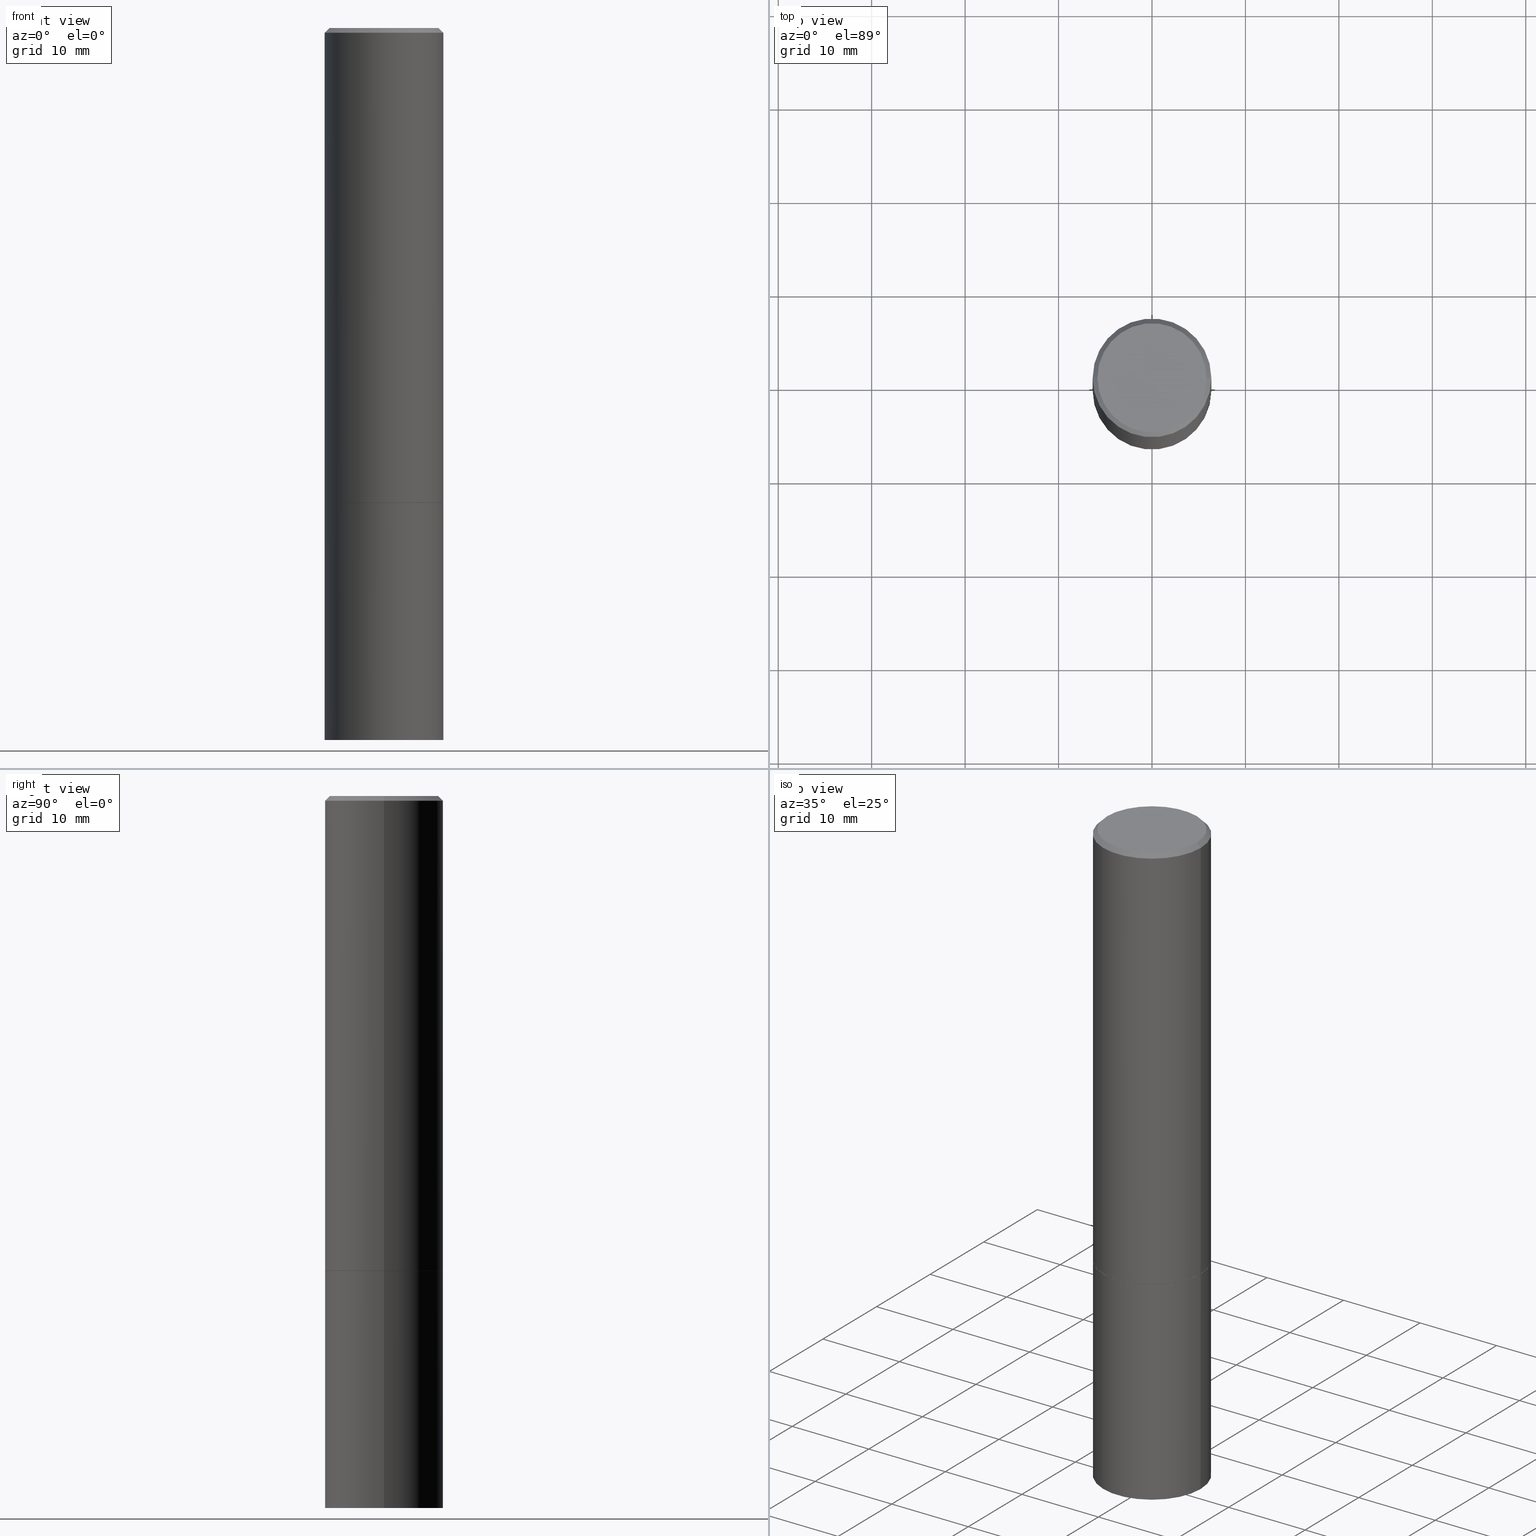
[diagram: canonical four-view strip — front | top / right | iso, engineering-drawing reading convention]
A machine part, canonical four-view strip (front | top / right | iso — engineering-drawing reading convention). The complete STEP part file that produces these views, byte-faithful:
ISO-10303-21;
HEADER;
FILE_DESCRIPTION (( 'STEP AP203' ),
    '1' );
FILE_NAME ('36826.STEP',
    '2024-02-27T19:52:59',
    ( '' ),
    ( '' ),
    'SwSTEP 2.0',
    'SolidWorks 2023',
    '' );
FILE_SCHEMA (( 'CONFIG_CONTROL_DESIGN' ));
ENDSEC;

DATA;
#1 = AXIS2_PLACEMENT_3D ( 'NONE', #194, #136, #308 ) ;
#2 = PLANE ( 'NONE',  #15 ) ;
#3 = EDGE_CURVE ( 'NONE', #271, #324, #366, .T. ) ;
#4 = ORIENTED_EDGE ( 'NONE', *, *, #33, .F. ) ;
#5 = PRODUCT_DEFINITION_FORMATION_WITH_SPECIFIED_SOURCE ( 'ANY', '', #216, .NOT_KNOWN. ) ;
#6 = ORIENTED_EDGE ( 'NONE', *, *, #89, .F. ) ;
#7 = ADVANCED_FACE ( 'NONE', ( #41 ), #230, .T. ) ;
#8 = ORIENTED_EDGE ( 'NONE', *, *, #33, .T. ) ;
#9 = DIRECTION ( 'NONE',  ( 1.000000000000000000, -6.982962677686267499E-15, 0.000000000000000000 ) ) ;
#10 = FACE_OUTER_BOUND ( 'NONE', #357, .T. ) ;
#11 = CARTESIAN_POINT ( 'NONE',  ( 0.2489999999999999991, -8.721720384430172617E-15, -2.000000000000000444 ) ) ;
#12 = ORIENTED_EDGE ( 'NONE', *, *, #119, .T. ) ;
#13 = CARTESIAN_POINT ( 'NONE',  ( 0.000000000000000000, 0.000000000000000000, 0.000000000000000000 ) ) ;
#14 = DIRECTION ( 'NONE',  ( -2.445468806185136597E-29, 3.491481338843145583E-15, 1.000000000000000000 ) ) ;
#15 = AXIS2_PLACEMENT_3D ( 'NONE', #49, #113, #110 ) ;
#16 = ORIENTED_EDGE ( 'NONE', *, *, #341, .T. ) ;
#17 = EDGE_CURVE ( 'NONE', #254, #19, #111, .T. ) ;
#18 = CARTESIAN_POINT ( 'NONE',  ( 4.890937612370273754E-29, -6.982962677686291954E-15, -2.000000000000000444 ) ) ;
#19 = VERTEX_POINT ( 'NONE', #129 ) ;
#20 = CALENDAR_DATE ( 2024, 27, 2 ) ;
#21 = CARTESIAN_POINT ( 'NONE',  ( 4.888492143564088712E-29, -6.979471196347448158E-15, -1.999000000000000110 ) ) ;
#22 = DIRECTION ( 'NONE',  ( 0.000000000000000000, 0.000000000000000000, 1.000000000000000000 ) ) ;
#23 = EDGE_CURVE ( 'NONE', #324, #271, #344, .T. ) ;
#24 = DIRECTION ( 'NONE',  ( -1.000000000000000000, 6.982962677686266711E-15, 0.000000000000000000 ) ) ;
#25 = CIRCLE ( 'NONE', #225, 0.2499999999999999722 ) ;
#26 = APPROVAL_STATUS ( 'not_yet_approved' ) ;
#27 = DIRECTION ( 'NONE',  ( 1.000000000000000000, -6.982962677686265922E-15, 4.876176775795935793E-29 ) ) ;
#28 = CC_DESIGN_PERSON_AND_ORGANIZATION_ASSIGNMENT ( #48, #280, ( #216 ) ) ;
#29 = CALENDAR_DATE ( 2024, 27, 2 ) ;
#30 = CARTESIAN_POINT ( 'NONE',  ( 4.890937612370273754E-29, -6.982962677686291954E-15, -2.000000000000000444 ) ) ;
#31 = DATE_TIME_ROLE ( 'classification_date' ) ;
#32 = AXIS2_PLACEMENT_3D ( 'NONE', #188, #102, #153 ) ;
#33 = EDGE_CURVE ( 'NONE', #271, #257, #213, .T. ) ;
#34 = LOCAL_TIME ( 14, 52, 59.00000000000000000, #187 ) ;
#35 = ORIENTED_EDGE ( 'NONE', *, *, #114, .T. ) ;
#36 = ADVANCED_FACE ( 'NONE', ( #10 ), #236, .T. ) ;
#37 = FACE_OUTER_BOUND ( 'NONE', #149, .T. ) ;
#38 = DIRECTION ( 'NONE',  ( 1.000000000000000000, -6.982962677686266711E-15, 4.876176775795935793E-29 ) ) ;
#39 = AXIS2_PLACEMENT_3D ( 'NONE', #196, #138, #143 ) ;
#40 = SECURITY_CLASSIFICATION ( '', '', #219 ) ;
#41 = FACE_OUTER_BOUND ( 'NONE', #61, .T. ) ;
#42 = CARTESIAN_POINT ( 'NONE',  ( 0.000000000000000000, 0.000000000000000000, 0.000000000000000000 ) ) ;
#43 = EDGE_LOOP ( 'NONE', ( #295, #8, #238, #354 ) ) ;
#44 = CARTESIAN_POINT ( 'NONE',  ( 7.336406418555409790E-29, -1.047444401652943635E-14, -3.000000000000000444 ) ) ;
#45 = AXIS2_PLACEMENT_3D ( 'NONE', #268, #14, #185 ) ;
#46 = CONICAL_SURFACE ( 'NONE', #283, 0.2489999999999999991, 0.7853981633973970977 ) ;
#47 = DIRECTION ( 'NONE',  ( 1.000000000000000000, -6.982962677686262766E-15, 0.000000000000000000 ) ) ;
#48 = PERSON_AND_ORGANIZATION ( #224, #309 ) ;
#49 = CARTESIAN_POINT ( 'NONE',  ( 1.606081415867840278E-15, 0.2299999999999998712, -8.201147578943247056E-16 ) ) ;
#50 = DATE_AND_TIME ( #77, #34 ) ;
#51 = CARTESIAN_POINT ( 'NONE',  ( 4.890937612370273754E-29, -6.982962677686291954E-15, -2.000000000000000444 ) ) ;
#52 = PERSON_AND_ORGANIZATION ( #224, #309 ) ;
#53 = AXIS2_PLACEMENT_3D ( 'NONE', #42, #64, #38 ) ;
#54 = DATE_AND_TIME ( #29, #165 ) ;
#55 = EDGE_CURVE ( 'NONE', #299, #156, #171, .T. ) ;
#56 = PERSON_AND_ORGANIZATION ( #224, #309 ) ;
#57 = DIRECTION ( 'NONE',  ( 1.000000000000000000, -6.982962677686267499E-15, 0.000000000000000000 ) ) ;
#58 = MANIFOLD_SOLID_BREP ( 'Body-Move/Copy2[1]', #116 ) ;
#59 = APPROVAL ( #26, 'UNSPECIFIED' ) ;
#60 = AXIS2_PLACEMENT_3D ( 'NONE', #30, #79, #166 ) ;
#61 = EDGE_LOOP ( 'NONE', ( #134, #93, #259, #318 ) ) ;
#62 = LINE ( 'NONE', #273, #288 ) ;
#63 = CC_DESIGN_PERSON_AND_ORGANIZATION_ASSIGNMENT ( #362, #330, ( #69 ) ) ;
#64 = DIRECTION ( 'NONE',  ( -2.445468806185136597E-29, 3.491481338843145583E-15, 1.000000000000000000 ) ) ;
#65 = ORIENTED_EDGE ( 'NONE', *, *, #106, .F. ) ;
#66 = EDGE_CURVE ( 'NONE', #257, #100, #293, .T. ) ;
#67 = AXIS2_PLACEMENT_3D ( 'NONE', #70, #124, #9 ) ;
#68 = CARTESIAN_POINT ( 'NONE',  ( 0.000000000000000000, 0.000000000000000000, 0.000000000000000000 ) ) ;
#69 = PRODUCT_DEFINITION ( 'UNKNOWN', '', #5, #161 ) ;
#70 = CARTESIAN_POINT ( 'NONE',  ( 4.888492143564088712E-29, -6.979471196347448158E-15, -1.999000000000000110 ) ) ;
#71 = ORIENTED_EDGE ( 'NONE', *, *, #17, .T. ) ;
#72 = ORIENTED_EDGE ( 'NONE', *, *, #226, .T. ) ;
#73 = APPLICATION_PROTOCOL_DEFINITION ( 'international standard', 'config_control_design', 1994, #86 ) ;
#74 = VECTOR ( 'NONE', #262, 39.37007874015748143 ) ;
#75 = CONICAL_SURFACE ( 'NONE', #172, 0.2489999999999999991, 0.7853981633973970977 ) ;
#76 = ORIENTED_EDGE ( 'NONE', *, *, #333, .F. ) ;
#77 = CALENDAR_DATE ( 2024, 27, 2 ) ;
#78 = CARTESIAN_POINT ( 'NONE',  ( 0.2500000000000000000, -8.728703347107858632E-15, -2.000000000000000444 ) ) ;
#79 = DIRECTION ( 'NONE',  ( -2.445468806185136597E-29, 3.491481338843145583E-15, 1.000000000000000000 ) ) ;
#80 = CARTESIAN_POINT ( 'NONE',  ( 0.000000000000000000, 0.000000000000000000, 0.000000000000000000 ) ) ;
#81 = DIMENSIONAL_EXPONENTS ( 1.000000000000000000, 0.000000000000000000, 0.000000000000000000, 0.000000000000000000, 0.000000000000000000, 0.000000000000000000, 0.000000000000000000 ) ;
#82 = AXIS2_PLACEMENT_3D ( 'NONE', #340, #191, #339 ) ;
#83 = COORDINATED_UNIVERSAL_TIME_OFFSET ( 5, 0, .BEHIND. ) ;
#84 = DIRECTION ( 'NONE',  ( 2.445468806185136597E-29, -3.491481338843145583E-15, -1.000000000000000000 ) ) ;
#85 = CARTESIAN_POINT ( 'NONE',  ( -0.2499999999999999722, -1.748293572161903489E-15, -1.999000000000000110 ) ) ;
#86 = APPLICATION_CONTEXT ( 'configuration controlled 3d designs of mechanical parts and assemblies' ) ;
#87 = CC_DESIGN_SECURITY_CLASSIFICATION ( #40, ( #5 ) ) ;
#88 = CARTESIAN_POINT ( 'NONE',  ( 0.2489999999999999991, -8.721720384430172617E-15, -2.000000000000000444 ) ) ;
#89 = EDGE_CURVE ( 'NONE', #19, #254, #272, .T. ) ;
#90 = AXIS2_PLACEMENT_3D ( 'NONE', #68, #274, #351 ) ;
#91 = CIRCLE ( 'NONE', #67, 0.2499999999999999722 ) ;
#92 = DIRECTION ( 'NONE',  ( -2.445468806185136597E-29, 3.491481338843145583E-15, 1.000000000000000000 ) ) ;
#93 = ORIENTED_EDGE ( 'NONE', *, *, #106, .T. ) ;
#94 = VERTEX_POINT ( 'NONE', #331 ) ;
#95 = EDGE_CURVE ( 'NONE', #324, #100, #334, .T. ) ;
#96 = CARTESIAN_POINT ( 'NONE',  ( 0.2500000000000000000, -1.222018468595100303E-14, -3.000000000000000444 ) ) ;
#97 = AXIS2_PLACEMENT_3D ( 'NONE', #51, #358, #27 ) ;
#98 = ORIENTED_EDGE ( 'NONE', *, *, #55, .F. ) ;
#99 =( LENGTH_UNIT ( ) NAMED_UNIT ( * ) SI_UNIT ( $, .METRE. ) );
#100 = VERTEX_POINT ( 'NONE', #78 ) ;
#101 = PERSON_AND_ORGANIZATION ( #224, #309 ) ;
#102 = DIRECTION ( 'NONE',  ( -2.445468806185136597E-29, 3.491481338843145583E-15, 1.000000000000000000 ) ) ;
#103 = AXIS2_PLACEMENT_3D ( 'NONE', #18, #289, #239 ) ;
#104 = PLANE ( 'NONE',  #97 ) ;
#105 = DIRECTION ( 'NONE',  ( -2.445468806185136597E-29, 3.491481338843145583E-15, 1.000000000000000000 ) ) ;
#106 = EDGE_CURVE ( 'NONE', #151, #19, #215, .T. ) ;
#107 = PERSON_AND_ORGANIZATION_ROLE ( 'design_supplier' ) ;
#108 = CARTESIAN_POINT ( 'NONE',  ( 8.350811314681758556E-46, -1.192274536304357760E-31, -3.414809992080329023E-17 ) ) ;
#109 = APPROVAL_ROLE ( '' ) ;
#110 = DIRECTION ( 'NONE',  ( -1.000000000000000000, 6.982962677686265922E-15, -4.876176775795935793E-29 ) ) ;
#111 = CIRCLE ( 'NONE', #45, 0.2499999999999998057 ) ;
#112 = CIRCLE ( 'NONE', #130, 0.2500000000000000000 ) ;
#113 = DIRECTION ( 'NONE',  ( 2.438088387897960049E-29, -3.491481338843145188E-15, -1.000000000000000000 ) ) ;
#114 = EDGE_CURVE ( 'NONE', #156, #299, #300, .T. ) ;
#115 = APPROVAL ( #338, 'UNSPECIFIED' ) ;
#116 = CLOSED_SHELL ( 'NONE', ( #265, #141, #181, #285 ) ) ;
#117 = LOCAL_TIME ( 14, 52, 59.00000000000000000, #212 ) ;
#118 = ADVANCED_FACE ( 'NONE', ( #365 ), #2, .F. ) ;
#119 = EDGE_CURVE ( 'NONE', #100, #257, #112, .T. ) ;
#120 = ORIENTED_EDGE ( 'NONE', *, *, #23, .F. ) ;
#121 = AXIS2_PLACEMENT_3D ( 'NONE', #227, #343, #258 ) ;
#122 = DIRECTION ( 'NONE',  ( 1.000000000000000000, -6.982962677686266711E-15, 4.876176775795935793E-29 ) ) ;
#123 = ORIENTED_EDGE ( 'NONE', *, *, #233, .F. ) ;
#124 = DIRECTION ( 'NONE',  ( -2.445468806185136597E-29, 3.491481338843145583E-15, 1.000000000000000000 ) ) ;
#125 = ADVANCED_BREP_SHAPE_REPRESENTATION ( '36826', ( #58, #178, #263 ), #319 ) ;
#126 = ORIENTED_EDGE ( 'NONE', *, *, #233, .T. ) ;
#127 = UNCERTAINTY_MEASURE_WITH_UNIT (LENGTH_MEASURE( 1.000000000000000082E-05 ), #323, 'distance_accuracy_value', 'NONE');
#128 = FACE_OUTER_BOUND ( 'NONE', #158, .T. ) ;
#129 = CARTESIAN_POINT ( 'NONE',  ( -0.2499999999999998057, 1.675911042644702196E-15, -0.02000000000000004205 ) ) ;
#130 = AXIS2_PLACEMENT_3D ( 'NONE', #162, #304, #218 ) ;
#131 = DIRECTION ( 'NONE',  ( -2.445468806185136597E-29, 3.491481338843145583E-15, 1.000000000000000000 ) ) ;
#132 = AXIS2_PLACEMENT_3D ( 'NONE', #350, #131, #184 ) ;
#133 = ORIENTED_EDGE ( 'NONE', *, *, #246, .T. ) ;
#134 = ORIENTED_EDGE ( 'NONE', *, *, #155, .T. ) ;
#135 = MECHANICAL_CONTEXT ( 'NONE', #169, 'mechanical' ) ;
#136 = DIRECTION ( 'NONE',  ( 2.438088387897960049E-29, -3.491481338843145188E-15, -1.000000000000000000 ) ) ;
#137 = AXIS2_PLACEMENT_3D ( 'NONE', #108, #252, #220 ) ;
#138 = DIRECTION ( 'NONE',  ( -2.445468806185136597E-29, 3.491481338843145583E-15, 1.000000000000000000 ) ) ;
#139 = APPROVAL_DATE_TIME ( #307, #59 ) ;
#140 = CARTESIAN_POINT ( 'NONE',  ( 4.890937612370273754E-29, -6.982962677686291954E-15, -2.000000000000000444 ) ) ;
#141 = ADVANCED_FACE ( 'NONE', ( #222 ), #223, .T. ) ;
#142 = PERSON_AND_ORGANIZATION ( #224, #309 ) ;
#143 = DIRECTION ( 'NONE',  ( 1.000000000000000000, -6.982962677686266711E-15, 0.000000000000000000 ) ) ;
#144 = COORDINATED_UNIVERSAL_TIME_OFFSET ( 5, 0, .BEHIND. ) ;
#145 = CARTESIAN_POINT ( 'NONE',  ( -0.2299999999999998712, 1.640996229256271139E-15, -3.414809992081464243E-17 ) ) ;
#146 = VECTOR ( 'NONE', #356, 39.37007874015748143 ) ;
#147 = ORIENTED_EDGE ( 'NONE', *, *, #66, .F. ) ;
#148 = CIRCLE ( 'NONE', #202, 0.2489999999999999991 ) ;
#149 = EDGE_LOOP ( 'NONE', ( #256, #292, #175, #76 ) ) ;
#150 = CARTESIAN_POINT ( 'NONE',  ( 0.2499999999999998057, -1.784954126219744611E-15, -0.02000000000000004205 ) ) ;
#151 = VERTEX_POINT ( 'NONE', #85 ) ;
#152 = CYLINDRICAL_SURFACE ( 'NONE', #132, 0.2500000000000000000 ) ;
#153 = DIRECTION ( 'NONE',  ( 1.000000000000000000, -6.982962677686262766E-15, 0.000000000000000000 ) ) ;
#154 = CARTESIAN_POINT ( 'NONE',  ( 0.2299999999999998712, -1.681434332853598025E-15, -3.414809992079179628E-17 ) ) ;
#155 = EDGE_CURVE ( 'NONE', #94, #151, #25, .T. ) ;
#156 = VERTEX_POINT ( 'NONE', #145 ) ;
#157 = DIRECTION ( 'NONE',  ( -0.7071067811865460184, 2.468850131082241283E-15, -0.7071067811865490160 ) ) ;
#158 = EDGE_LOOP ( 'NONE', ( #255, #177, #297, #173 ) ) ;
#159 = CARTESIAN_POINT ( 'NONE',  ( -0.2500000000000000000, -6.952346507707613689E-15, -3.000000000000000444 ) ) ;
#160 = EDGE_LOOP ( 'NONE', ( #12, #316 ) ) ;
#161 = DESIGN_CONTEXT ( 'detailed design', #86, 'design' ) ;
#162 = CARTESIAN_POINT ( 'NONE',  ( 4.890937612370273754E-29, -6.982962677686291954E-15, -2.000000000000000444 ) ) ;
#163 = APPROVAL_DATE_TIME ( #241, #209 ) ;
#164 = FACE_OUTER_BOUND ( 'NONE', #322, .T. ) ;
#165 = LOCAL_TIME ( 14, 52, 59.00000000000000000, #144 ) ;
#166 = DIRECTION ( 'NONE',  ( 1.000000000000000000, -6.982962677686266711E-15, 0.000000000000000000 ) ) ;
#167 = DATE_TIME_ROLE ( 'creation_date' ) ;
#168 = COORDINATED_UNIVERSAL_TIME_OFFSET ( 5, 0, .BEHIND. ) ;
#169 = APPLICATION_CONTEXT ( 'configuration controlled 3d designs of mechanical parts and assemblies' ) ;
#170 = DIRECTION ( 'NONE',  ( -2.445468806185136597E-29, 3.491481338843145583E-15, 1.000000000000000000 ) ) ;
#171 = CIRCLE ( 'NONE', #137, 0.2299999999999998712 ) ;
#172 = AXIS2_PLACEMENT_3D ( 'NONE', #345, #203, #237 ) ;
#173 = ORIENTED_EDGE ( 'NONE', *, *, #341, .F. ) ;
#174 = AXIS2_PLACEMENT_3D ( 'NONE', #266, #84, #24 ) ;
#175 = ORIENTED_EDGE ( 'NONE', *, *, #155, .F. ) ;
#176 = FACE_OUTER_BOUND ( 'NONE', #43, .T. ) ;
#177 = ORIENTED_EDGE ( 'NONE', *, *, #332, .T. ) ;
#178 = MANIFOLD_SOLID_BREP ( 'Body-Move/Copy2[2]', #336 ) ;
#179 = DIRECTION ( 'NONE',  ( -2.445468806185136597E-29, 3.491481338843145583E-15, 1.000000000000000000 ) ) ;
#180 = ORIENTED_EDGE ( 'NONE', *, *, #89, .T. ) ;
#181 = ADVANCED_FACE ( 'NONE', ( #279 ), #276, .F. ) ;
#182 = CYLINDRICAL_SURFACE ( 'NONE', #53, 0.2500000000000000000 ) ;
#183 = EDGE_LOOP ( 'NONE', ( #35, #311 ) ) ;
#184 = DIRECTION ( 'NONE',  ( 1.000000000000000000, -6.982962677686266711E-15, 4.876176775795935793E-29 ) ) ;
#185 = DIRECTION ( 'NONE',  ( 1.000000000000000000, -6.982962677686266711E-15, 0.000000000000000000 ) ) ;
#186 = ORIENTED_EDGE ( 'NONE', *, *, #246, .F. ) ;
#187 = COORDINATED_UNIVERSAL_TIME_OFFSET ( 5, 0, .BEHIND. ) ;
#188 = CARTESIAN_POINT ( 'NONE',  ( 7.336406418555409790E-29, -1.047444401652943635E-14, -3.000000000000000444 ) ) ;
#189 = APPLICATION_PROTOCOL_DEFINITION ( 'international standard', 'config_control_design', 1994, #169 ) ;
#190 = CARTESIAN_POINT ( 'NONE',  ( 8.350811314681758556E-46, -1.192274536304357760E-31, -3.414809992080329023E-17 ) ) ;
#191 = DIRECTION ( 'NONE',  ( 2.438088387897960049E-29, -3.491481338843145188E-15, -1.000000000000000000 ) ) ;
#192 = VECTOR ( 'NONE', #242, 39.37007874015748143 ) ;
#193 = CC_DESIGN_APPROVAL ( #59, ( #5 ) ) ;
#194 = CARTESIAN_POINT ( 'NONE',  ( 1.745740669421615390E-15, 0.2499999999999930334, -2.000000000000000888 ) ) ;
#195 = EDGE_CURVE ( 'NONE', #204, #232, #148, .T. ) ;
#196 = CARTESIAN_POINT ( 'NONE',  ( 4.890937612370283668E-31, -6.982962677686305168E-17, -0.02000000000000004205 ) ) ;
#197 = CC_DESIGN_PERSON_AND_ORGANIZATION_ASSIGNMENT ( #56, #107, ( #5 ) ) ;
#198 = CARTESIAN_POINT ( 'NONE',  ( 0.2499999999999998612, -1.745740669421565692E-15, 1.219044193948983248E-29 ) ) ;
#199 = APPROVAL_PERSON_ORGANIZATION ( #364, #115, #325 ) ;
#200 = ADVANCED_FACE ( 'NONE', ( #164 ), #104, .F. ) ;
#201 = ADVANCED_FACE ( 'NONE', ( #247 ), #328, .T. ) ;
#202 = AXIS2_PLACEMENT_3D ( 'NONE', #140, #170, #282 ) ;
#203 = DIRECTION ( 'NONE',  ( -2.445468806185136597E-29, 3.491481338843145583E-15, 1.000000000000000000 ) ) ;
#204 = VERTEX_POINT ( 'NONE', #88 ) ;
#205 = ORIENTED_EDGE ( 'NONE', *, *, #114, .F. ) ;
#206 = CC_DESIGN_APPROVAL ( #209, ( #69 ) ) ;
#207 = LOCAL_TIME ( 14, 52, 59.00000000000000000, #83 ) ;
#208 = ORIENTED_EDGE ( 'NONE', *, *, #195, .F. ) ;
#209 = APPROVAL ( #275, 'UNSPECIFIED' ) ;
#210 = LENGTH_MEASURE_WITH_UNIT ( LENGTH_MEASURE( 0.02539999999999999897 ), #99 );
#211 = DIRECTION ( 'NONE',  ( -2.445468806185136597E-29, 3.491481338843145583E-15, 1.000000000000000000 ) ) ;
#212 = COORDINATED_UNIVERSAL_TIME_OFFSET ( 5, 0, .BEHIND. ) ;
#213 = LINE ( 'NONE', #326, #74 ) ;
#214 = DATE_AND_TIME ( #281, #244 ) ;
#215 = LINE ( 'NONE', #361, #337 ) ;
#216 = PRODUCT ( '36826', '36826', '', ( #135 ) ) ;
#217 = DIRECTION ( 'NONE',  ( 1.000000000000000000, 0.000000000000000000, 0.000000000000000000 ) ) ;
#218 = DIRECTION ( 'NONE',  ( 1.000000000000000000, -6.982962677686266711E-15, 0.000000000000000000 ) ) ;
#219 = SECURITY_CLASSIFICATION_LEVEL ( 'unclassified' ) ;
#220 = DIRECTION ( 'NONE',  ( 1.000000000000000000, -6.982962677686266711E-15, 4.875813741439102577E-29 ) ) ;
#221 = PERSON_AND_ORGANIZATION_ROLE ( 'classification_officer' ) ;
#222 = FACE_OUTER_BOUND ( 'NONE', #314, .T. ) ;
#223 = PLANE ( 'NONE',  #82 ) ;
#224 = PERSON ( 'UNSPECIFIED', 'UNSPECIFIED', 'UNSPECIFIED', ('UNSPECIFIED'), ('UNSPECIFIED'), ('UNSPECIFIED') ) ;
#225 = AXIS2_PLACEMENT_3D ( 'NONE', #21, #305, #57 ) ;
#226 = EDGE_CURVE ( 'NONE', #94, #254, #253, .T. ) ;
#227 = CARTESIAN_POINT ( 'NONE',  ( 4.890937612370283668E-31, -6.982962677686305168E-17, -0.02000000000000004205 ) ) ;
#228 = AXIS2_PLACEMENT_3D ( 'NONE', #13, #92, #122 ) ;
#229 = CARTESIAN_POINT ( 'NONE',  ( 0.2499999999999998057, -1.784954126219744611E-15, -0.02000000000000004205 ) ) ;
#230 = CYLINDRICAL_SURFACE ( 'NONE', #90, 0.2499999999999998612 ) ;
#231 = FACE_OUTER_BOUND ( 'NONE', #290, .T. ) ;
#232 = VERTEX_POINT ( 'NONE', #286 ) ;
#233 = EDGE_CURVE ( 'NONE', #299, #254, #291, .T. ) ;
#234 = ORIENTED_EDGE ( 'NONE', *, *, #3, .F. ) ;
#235 = ADVANCED_FACE ( 'NONE', ( #37 ), #46, .T. ) ;
#236 = CONICAL_SURFACE ( 'NONE', #174, 0.2499999999999998057, 0.7853981633974461696 ) ;
#237 = DIRECTION ( 'NONE',  ( 1.000000000000000000, -6.982962677686266711E-15, 0.000000000000000000 ) ) ;
#238 = ORIENTED_EDGE ( 'NONE', *, *, #119, .F. ) ;
#239 = DIRECTION ( 'NONE',  ( 1.000000000000000000, -6.982962677686266711E-15, 0.000000000000000000 ) ) ;
#240 = EDGE_LOOP ( 'NONE', ( #123, #205, #133, #180 ) ) ;
#241 = DATE_AND_TIME ( #20, #117 ) ;
#242 = DIRECTION ( 'NONE',  ( -2.445468806185136877E-29, 3.491481338843145188E-15, 1.000000000000000000 ) ) ;
#243 = PERSON_AND_ORGANIZATION ( #224, #309 ) ;
#244 = LOCAL_TIME ( 14, 52, 59.00000000000000000, #168 ) ;
#245 = CARTESIAN_POINT ( 'NONE',  ( 0.2500000000000000000, -1.745740669421566678E-15, 1.219044193948983948E-29 ) ) ;
#246 = EDGE_CURVE ( 'NONE', #156, #19, #62, .T. ) ;
#247 = FACE_OUTER_BOUND ( 'NONE', #240, .T. ) ;
#248 = PERSON_AND_ORGANIZATION_ROLE ( 'creator' ) ;
#249 = DIRECTION ( 'NONE',  ( 1.000000000000000000, -6.982962677686266711E-15, 4.875813741439102577E-29 ) ) ;
#250 = CALENDAR_DATE ( 2024, 27, 2 ) ;
#251 = CIRCLE ( 'NONE', #103, 0.2489999999999999991 ) ;
#252 = DIRECTION ( 'NONE',  ( -2.445468806185136597E-29, 3.491481338843145583E-15, 1.000000000000000000 ) ) ;
#253 = LINE ( 'NONE', #198, #352 ) ;
#254 = VERTEX_POINT ( 'NONE', #150 ) ;
#255 = ORIENTED_EDGE ( 'NONE', *, *, #306, .F. ) ;
#256 = ORIENTED_EDGE ( 'NONE', *, *, #195, .T. ) ;
#257 = VERTEX_POINT ( 'NONE', #294 ) ;
#258 = DIRECTION ( 'NONE',  ( -1.000000000000000000, 6.982962677686266711E-15, 0.000000000000000000 ) ) ;
#259 = ORIENTED_EDGE ( 'NONE', *, *, #17, .F. ) ;
#260 = DIRECTION ( 'NONE',  ( 0.7071067811865460184, -7.319954787623251312E-15, -0.7071067811865490160 ) ) ;
#261 = AXIS2_PLACEMENT_3D ( 'NONE', #44, #211, #47 ) ;
#262 = DIRECTION ( 'NONE',  ( -2.445468806185136877E-29, 3.491481338843145188E-15, 1.000000000000000000 ) ) ;
#263 = AXIS2_PLACEMENT_3D ( 'NONE', #80, #22, #217 ) ;
#264 = CARTESIAN_POINT ( 'NONE',  ( -0.2489999999999999991, -5.213711265643642498E-15, -2.000000000000000444 ) ) ;
#265 = ADVANCED_FACE ( 'NONE', ( #176 ), #182, .T. ) ;
#266 = CARTESIAN_POINT ( 'NONE',  ( 4.890937612370283668E-31, -6.982962677686305168E-17, -0.02000000000000004205 ) ) ;
#267 = CYLINDRICAL_SURFACE ( 'NONE', #228, 0.2499999999999998612 ) ;
#268 = CARTESIAN_POINT ( 'NONE',  ( 4.890937612370283668E-31, -6.982962677686305168E-17, -0.02000000000000004205 ) ) ;
#269 = CC_DESIGN_DATE_AND_TIME_ASSIGNMENT ( #54, #167, ( #69 ) ) ;
#270 = DIRECTION ( 'NONE',  ( -0.7071067811865112684, 7.493145998870223209E-15, 0.7071067811865837660 ) ) ;
#271 = VERTEX_POINT ( 'NONE', #159 ) ;
#272 = CIRCLE ( 'NONE', #39, 0.2499999999999998057 ) ;
#273 = CARTESIAN_POINT ( 'NONE',  ( -0.2499999999999998057, 1.675911042644702196E-15, -0.02000000000000004205 ) ) ;
#274 = DIRECTION ( 'NONE',  ( -2.445468806185136597E-29, 3.491481338843145583E-15, 1.000000000000000000 ) ) ;
#275 = APPROVAL_STATUS ( 'not_yet_approved' ) ;
#276 = PLANE ( 'NONE',  #1 ) ;
#277 = PRODUCT_RELATED_PRODUCT_CATEGORY ( 'detail', '', ( #216 ) ) ;
#278 = APPROVAL_DATE_TIME ( #50, #115 ) ;
#279 = FACE_OUTER_BOUND ( 'NONE', #160, .T. ) ;
#280 = PERSON_AND_ORGANIZATION_ROLE ( 'design_owner' ) ;
#281 = CALENDAR_DATE ( 2024, 27, 2 ) ;
#282 = DIRECTION ( 'NONE',  ( 1.000000000000000000, -6.982962677686266711E-15, 0.000000000000000000 ) ) ;
#283 = AXIS2_PLACEMENT_3D ( 'NONE', #315, #179, #298 ) ;
#284 = ORIENTED_EDGE ( 'NONE', *, *, #3, .T. ) ;
#285 = ADVANCED_FACE ( 'NONE', ( #347 ), #152, .T. ) ;
#286 = CARTESIAN_POINT ( 'NONE',  ( -0.2489999999999999991, -5.208412811295420884E-15, -2.000000000000000444 ) ) ;
#287 = VECTOR ( 'NONE', #270, 39.37007874015748143 ) ;
#288 = VECTOR ( 'NONE', #157, 39.37007874015748143 ) ;
#289 = DIRECTION ( 'NONE',  ( -2.445468806185136597E-29, 3.491481338843145583E-15, 1.000000000000000000 ) ) ;
#290 = EDGE_LOOP ( 'NONE', ( #65, #16, #72, #6 ) ) ;
#291 = LINE ( 'NONE', #229, #342 ) ;
#292 = ORIENTED_EDGE ( 'NONE', *, *, #306, .T. ) ;
#293 = CIRCLE ( 'NONE', #60, 0.2500000000000000000 ) ;
#294 = CARTESIAN_POINT ( 'NONE',  ( -0.2500000000000000000, -6.952346507707613689E-15, -2.000000000000000444 ) ) ;
#295 = ORIENTED_EDGE ( 'NONE', *, *, #23, .T. ) ;
#296 = LINE ( 'NONE', #264, #287 ) ;
#297 = ORIENTED_EDGE ( 'NONE', *, *, #333, .T. ) ;
#298 = DIRECTION ( 'NONE',  ( 1.000000000000000000, -6.982962677686266711E-15, 0.000000000000000000 ) ) ;
#299 = VERTEX_POINT ( 'NONE', #154 ) ;
#300 = CIRCLE ( 'NONE', #313, 0.2299999999999998712 ) ;
#301 = APPROVAL_ROLE ( '' ) ;
#302 = ORIENTED_EDGE ( 'NONE', *, *, #95, .T. ) ;
#303 =( NAMED_UNIT ( * ) SI_UNIT ( $, .STERADIAN. ) SOLID_ANGLE_UNIT ( ) );
#304 = DIRECTION ( 'NONE',  ( -2.445468806185136597E-29, 3.491481338843145583E-15, 1.000000000000000000 ) ) ;
#305 = DIRECTION ( 'NONE',  ( -2.445468806185136597E-29, 3.491481338843145583E-15, 1.000000000000000000 ) ) ;
#306 = EDGE_CURVE ( 'NONE', #232, #151, #296, .T. ) ;
#307 = DATE_AND_TIME ( #250, #207 ) ;
#308 = DIRECTION ( 'NONE',  ( -1.000000000000000000, 6.982962677686265922E-15, -4.876176775795935793E-29 ) ) ;
#309 = ORGANIZATION ( 'UNSPECIFIED', 'UNSPECIFIED', '' ) ;
#310 = APPROVAL_PERSON_ORGANIZATION ( #52, #59, #109 ) ;
#311 = ORIENTED_EDGE ( 'NONE', *, *, #55, .T. ) ;
#312 = DIRECTION ( 'NONE',  ( -2.445468806185136877E-29, 3.491481338843145188E-15, 1.000000000000000000 ) ) ;
#313 = AXIS2_PLACEMENT_3D ( 'NONE', #190, #105, #249 ) ;
#314 = EDGE_LOOP ( 'NONE', ( #120, #234 ) ) ;
#315 = CARTESIAN_POINT ( 'NONE',  ( 4.890937612370273754E-29, -6.982962677686291954E-15, -2.000000000000000444 ) ) ;
#316 = ORIENTED_EDGE ( 'NONE', *, *, #66, .T. ) ;
#317 =( NAMED_UNIT ( * ) PLANE_ANGLE_UNIT ( ) SI_UNIT ( $, .RADIAN. ) );
#318 = ORIENTED_EDGE ( 'NONE', *, *, #226, .F. ) ;
#319 =( GEOMETRIC_REPRESENTATION_CONTEXT ( 3 ) GLOBAL_UNCERTAINTY_ASSIGNED_CONTEXT ( ( #127 ) ) GLOBAL_UNIT_ASSIGNED_CONTEXT ( ( #323, #317, #303 ) ) REPRESENTATION_CONTEXT ( 'NONE', 'WORKASPACE' ) );
#320 = CC_DESIGN_PERSON_AND_ORGANIZATION_ASSIGNMENT ( #243, #248, ( #5 ) ) ;
#321 = LINE ( 'NONE', #11, #146 ) ;
#322 = EDGE_LOOP ( 'NONE', ( #208, #346 ) ) ;
#323 =( CONVERSION_BASED_UNIT ( 'INCH', #210 ) LENGTH_UNIT ( ) NAMED_UNIT ( #81 ) );
#324 = VERTEX_POINT ( 'NONE', #96 ) ;
#325 = APPROVAL_ROLE ( '' ) ;
#326 = CARTESIAN_POINT ( 'NONE',  ( -0.2500000000000000000, 1.776356839400250465E-15, -1.229733772563726445E-29 ) ) ;
#327 = CC_DESIGN_PERSON_AND_ORGANIZATION_ASSIGNMENT ( #101, #221, ( #40 ) ) ;
#328 = CONICAL_SURFACE ( 'NONE', #121, 0.2499999999999998057, 0.7853981633974461696 ) ;
#329 = CC_DESIGN_APPROVAL ( #115, ( #40 ) ) ;
#330 = PERSON_AND_ORGANIZATION_ROLE ( 'creator' ) ;
#331 = CARTESIAN_POINT ( 'NONE',  ( 0.2499999999999999722, -8.725211865769015625E-15, -1.999000000000000110 ) ) ;
#332 = EDGE_CURVE ( 'NONE', #232, #204, #251, .T. ) ;
#333 = EDGE_CURVE ( 'NONE', #204, #94, #321, .T. ) ;
#334 = LINE ( 'NONE', #245, #192 ) ;
#335 = PRODUCT_DEFINITION_SHAPE ( 'NONE', 'NONE',  #69 ) ;
#336 = CLOSED_SHELL ( 'NONE', ( #235, #7, #36, #201, #349, #353, #200, #118 ) ) ;
#337 = VECTOR ( 'NONE', #363, 39.37007874015748143 ) ;
#338 = APPROVAL_STATUS ( 'not_yet_approved' ) ;
#339 = DIRECTION ( 'NONE',  ( -1.000000000000000000, 6.982962677686265922E-15, -4.876176775795935793E-29 ) ) ;
#340 = CARTESIAN_POINT ( 'NONE',  ( 1.745740669421639647E-15, 0.2499999999999895084, -3.000000000000001332 ) ) ;
#341 = EDGE_CURVE ( 'NONE', #151, #94, #91, .T. ) ;
#342 = VECTOR ( 'NONE', #260, 39.37007874015748143 ) ;
#343 = DIRECTION ( 'NONE',  ( 2.445468806185136597E-29, -3.491481338843145583E-15, -1.000000000000000000 ) ) ;
#344 = CIRCLE ( 'NONE', #32, 0.2500000000000000000 ) ;
#345 = CARTESIAN_POINT ( 'NONE',  ( 4.890937612370273754E-29, -6.982962677686291954E-15, -2.000000000000000444 ) ) ;
#346 = ORIENTED_EDGE ( 'NONE', *, *, #332, .F. ) ;
#347 = FACE_OUTER_BOUND ( 'NONE', #348, .T. ) ;
#348 = EDGE_LOOP ( 'NONE', ( #4, #284, #302, #147 ) ) ;
#349 = ADVANCED_FACE ( 'NONE', ( #231 ), #267, .T. ) ;
#350 = CARTESIAN_POINT ( 'NONE',  ( 0.000000000000000000, 0.000000000000000000, 0.000000000000000000 ) ) ;
#351 = DIRECTION ( 'NONE',  ( 1.000000000000000000, -6.982962677686266711E-15, 4.876176775795935793E-29 ) ) ;
#352 = VECTOR ( 'NONE', #312, 39.37007874015748143 ) ;
#353 = ADVANCED_FACE ( 'NONE', ( #128 ), #75, .T. ) ;
#354 = ORIENTED_EDGE ( 'NONE', *, *, #95, .F. ) ;
#355 = CC_DESIGN_DATE_AND_TIME_ASSIGNMENT ( #214, #31, ( #40 ) ) ;
#356 = DIRECTION ( 'NONE',  ( 0.7071067811865112684, -2.468850131081876830E-15, 0.7071067811865837660 ) ) ;
#357 = EDGE_LOOP ( 'NONE', ( #98, #126, #71, #186 ) ) ;
#358 = DIRECTION ( 'NONE',  ( -2.438088387897960049E-29, 3.491481338843145188E-15, 1.000000000000000000 ) ) ;
#359 = APPROVAL_PERSON_ORGANIZATION ( #142, #209, #301 ) ;
#360 = SHAPE_DEFINITION_REPRESENTATION ( #335, #125 ) ;
#361 = CARTESIAN_POINT ( 'NONE',  ( -0.2499999999999998612, 1.776356839400249479E-15, -1.229733772563725745E-29 ) ) ;
#362 = PERSON_AND_ORGANIZATION ( #224, #309 ) ;
#363 = DIRECTION ( 'NONE',  ( -2.445468806185136877E-29, 3.491481338843145188E-15, 1.000000000000000000 ) ) ;
#364 = PERSON_AND_ORGANIZATION ( #224, #309 ) ;
#365 = FACE_OUTER_BOUND ( 'NONE', #183, .T. ) ;
#366 = CIRCLE ( 'NONE', #261, 0.2500000000000000000 ) ;
ENDSEC;
END-ISO-10303-21;
